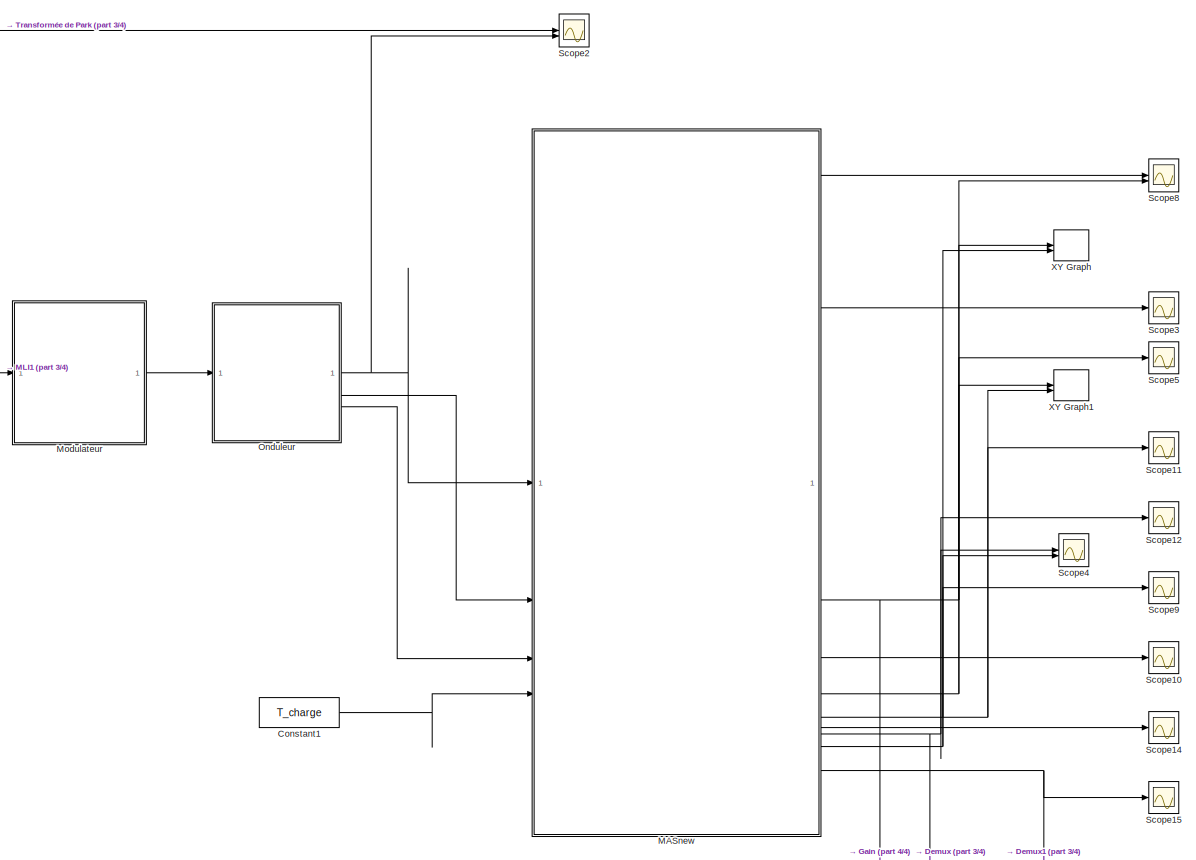
[diagram: root canvas - part 1/4, top right region]
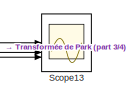
[diagram: root canvas - part 2/4, top center region]
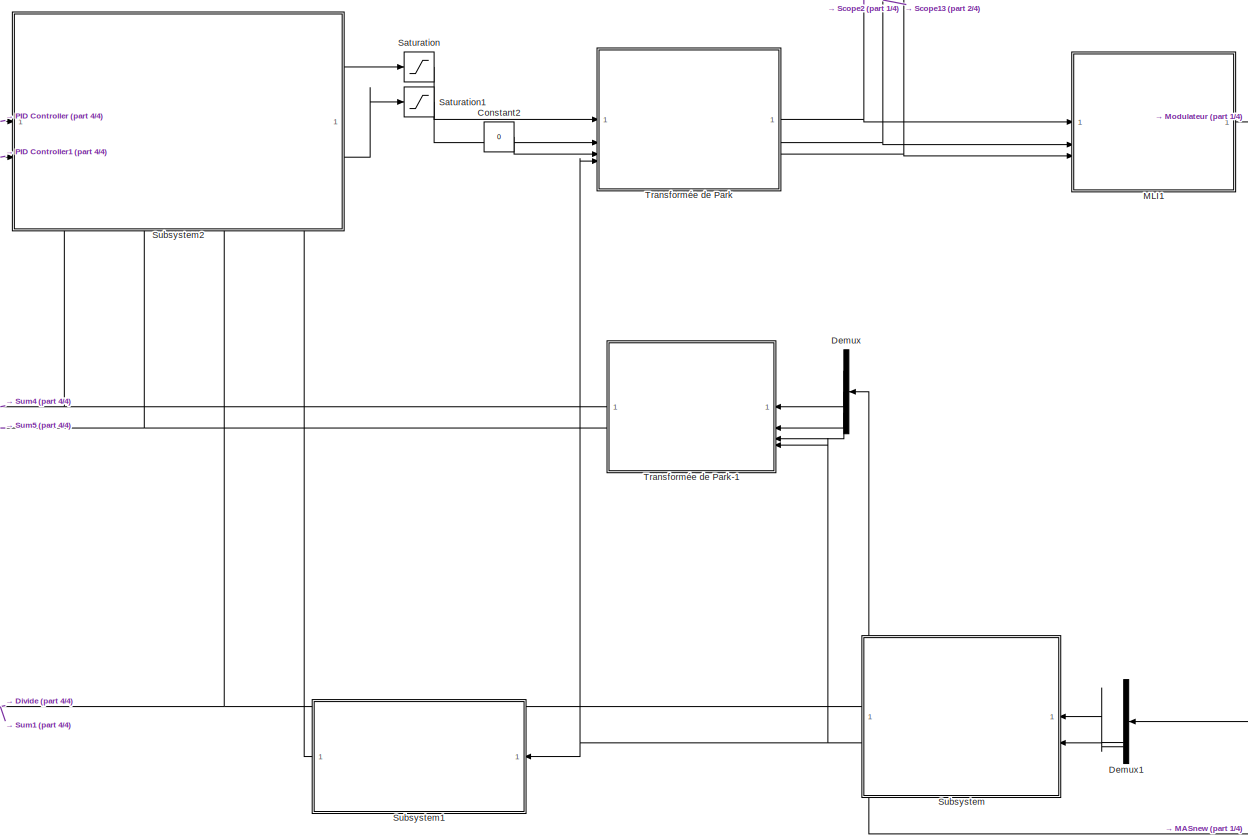
[diagram: root canvas - part 3/4, central region]
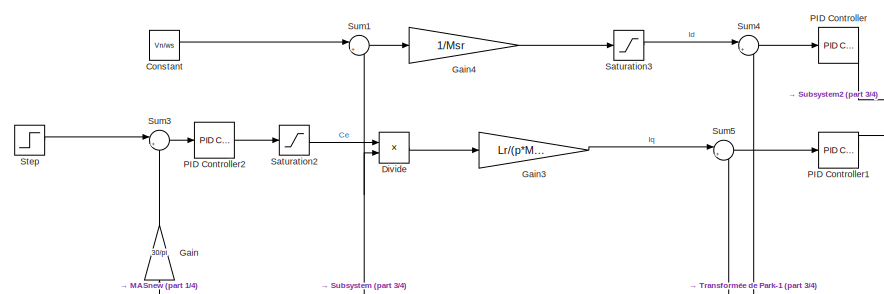
[diagram: root canvas - part 4/4, top left region]
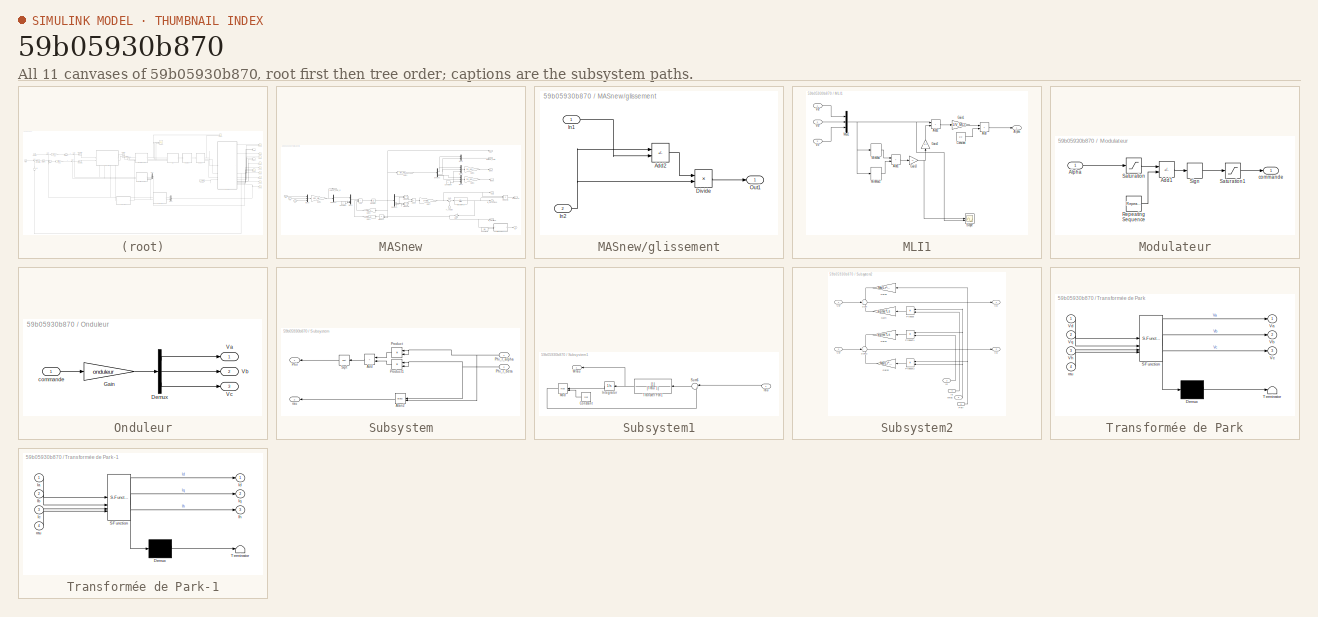
[diagram: thumbnail index - all 11 canvases of the model, root first then tree order]
MODEL slx_59b05930b870
KIND model
CONFIG AbsTol = auto
CONFIG EnableMultiTasking = off
CONFIG FixedStep = 1e-6
CONFIG MaxStep = auto
CONFIG MinStep = auto
CONFIG RelTol = 1e-3
CONFIG SampleTimeConstraint = Unconstrained
CONFIG SolverName = FixedStepAuto
CONFIG StartTime = 0.0
CONFIG StopTime = 0.3
BLOCK [Constant] Constant
  Value = Vn/ws
BLOCK [Constant] Constant1
  Value = T_charge
BLOCK [Constant] Constant2
  Value = 0
BLOCK [Demux] Demux
  NameLocation = top
  Outputs = 3
BLOCK [Demux] Demux1
  NameLocation = top
BLOCK [Product] Divide
  Inputs = */
BLOCK [Gain] Gain
  Gain = 30/pi
  NameLocation = right
BLOCK [Gain] Gain3
  Gain = Lr/(p*Msr)
BLOCK [Gain] Gain4
  Gain = 1/Msr
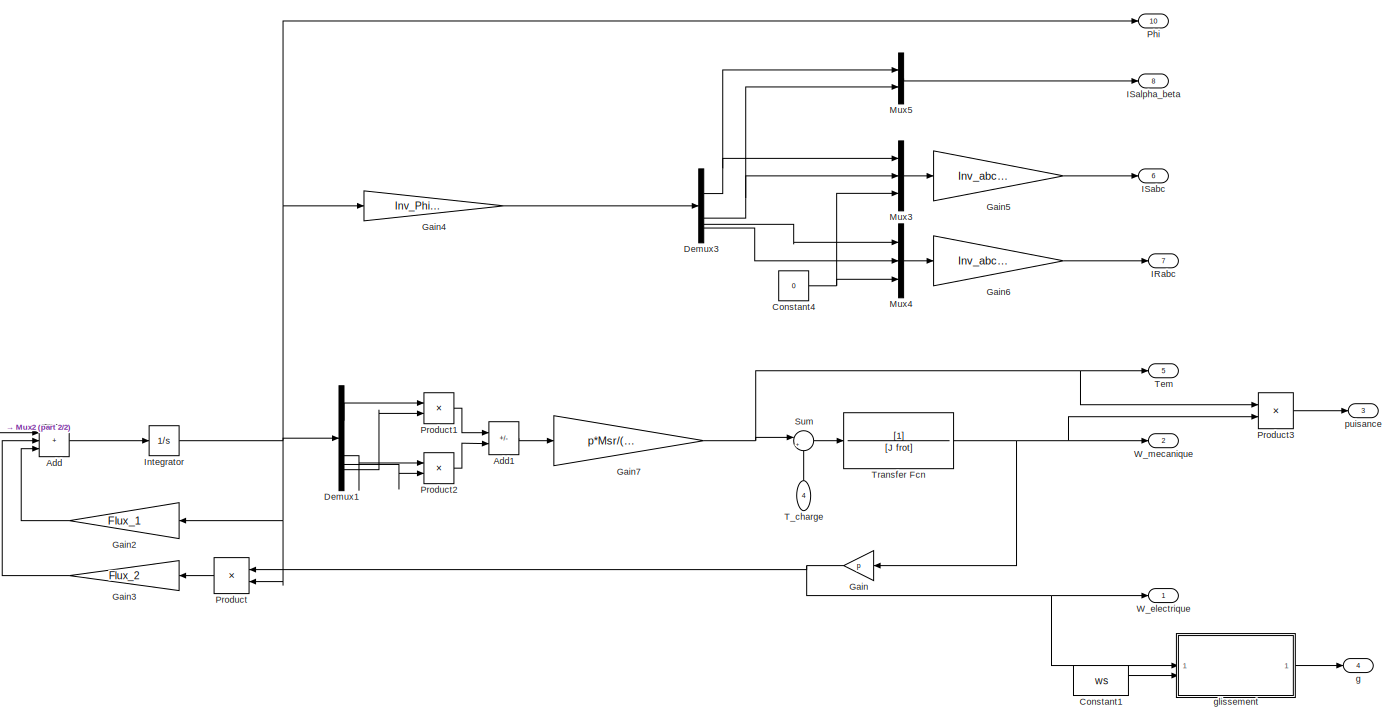
[diagram: MASnew - part 1/2, center side, full height]
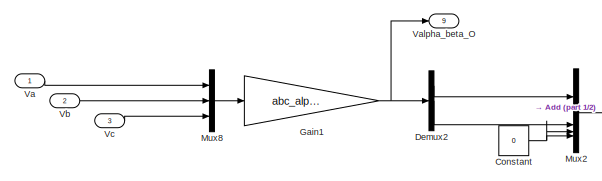
[diagram: MASnew - part 2/2, middle left region]
BLOCK [SubSystem] MASnew
BLOCK [Sum] MASnew/Add
  IconShape = rectangular
  Inputs = +++
BLOCK [Sum] MASnew/Add1
  IconShape = rectangular
  Inputs = +-
BLOCK [Constant] MASnew/Constant
  Value = 0
BLOCK [Constant] MASnew/Constant1
  Value = ws
BLOCK [Constant] MASnew/Constant4
  Value = 0
BLOCK [Demux] MASnew/Demux1
BLOCK [Demux] MASnew/Demux2
  Outputs = 3
BLOCK [Demux] MASnew/Demux3
BLOCK [Gain] MASnew/Gain
  Gain = p
  NameLocation = top
BLOCK [Gain] MASnew/Gain1
  Gain = abc_alpha_beta
  Multiplication = Matrix(K*u)
BLOCK [Gain] MASnew/Gain2
  Gain = Flux_1
  Multiplication = Matrix(K*u)
  NameLocation = top
BLOCK [Gain] MASnew/Gain3
  Gain = Flux_2
  Multiplication = Matrix(K*u)
  NameLocation = top
BLOCK [Gain] MASnew/Gain4
  Gain = Inv_Phi_Courant
  Multiplication = Matrix(K*u)
BLOCK [Gain] MASnew/Gain5
  Gain = Inv_abc_alpha_beta
  Multiplication = Matrix(K*u)
BLOCK [Gain] MASnew/Gain6
  Gain = Inv_abc_alpha_beta
  Multiplication = Matrix(K*u)
BLOCK [Gain] MASnew/Gain7
  Gain = p*Msr/(Msr^2 - Lr*Ls)
BLOCK [Outport] MASnew/IRabc
  Port = 7
BLOCK [Outport] MASnew/ISabc
  Port = 6
BLOCK [Outport] MASnew/ISalpha_beta
  Port = 8
BLOCK [Integrator] MASnew/Integrator
BLOCK [Mux] MASnew/Mux2
  DisplayOption = bar
BLOCK [Mux] MASnew/Mux3
  DisplayOption = bar
  Inputs = 3
BLOCK [Mux] MASnew/Mux4
  DisplayOption = bar
  Inputs = 3
BLOCK [Mux] MASnew/Mux5
  DisplayOption = bar
  Inputs = 2
BLOCK [Mux] MASnew/Mux8
  DisplayOption = bar
  Inputs = 3
BLOCK [Outport] MASnew/Phi
  Port = 10
BLOCK [Product] MASnew/Product
  NameLocation = top
BLOCK [Product] MASnew/Product1
BLOCK [Product] MASnew/Product2
BLOCK [Product] MASnew/Product3
BLOCK [Sum] MASnew/Sum
  Inputs = |+-
BLOCK [Inport] MASnew/T_charge
  NameLocation = right
  Port = 4
BLOCK [Outport] MASnew/Tem
  Port = 5
BLOCK [TransferFcn] MASnew/Transfer Fcn
  Denominator = [J frot]
BLOCK [Inport] MASnew/Va
BLOCK [Outport] MASnew/Valpha_beta_O
  Port = 9
BLOCK [Inport] MASnew/Vb
  Port = 2
BLOCK [Inport] MASnew/Vc
  Port = 3
BLOCK [Outport] MASnew/W_electrique
BLOCK [Outport] MASnew/W_mecanique
  Port = 2
BLOCK [Outport] MASnew/g
  Port = 4
BLOCK [SubSystem] MASnew/glissement
BLOCK [Sum] MASnew/glissement/Add2
  IconShape = rectangular
  Inputs = +-
BLOCK [Product] MASnew/glissement/Divide
  Inputs = */
BLOCK [Inport] MASnew/glissement/In1
BLOCK [Inport] MASnew/glissement/In2
  Port = 2
BLOCK [Outport] MASnew/glissement/Out1
BLOCK [Outport] MASnew/puisance
  Port = 3
BLOCK [SubSystem] MLI1
BLOCK [Sum] MLI1/Add
  IconShape = rectangular
BLOCK [Sum] MLI1/Add1
  IconShape = rectangular
BLOCK [Sum] MLI1/Add2
  IconShape = rectangular
BLOCK [Outport] MLI1/Alpha
BLOCK [Constant] MLI1/Constant
  Value = 1/2
BLOCK [Gain] MLI1/Gain1
  Gain = 1/V_MLI
BLOCK [Gain] MLI1/Gain2
  Gain = 1/2
  NameLocation = right
BLOCK [Gain] MLI1/Gain3
  Gain = -1
BLOCK [MinMax] MLI1/MinMax
BLOCK [MinMax] MLI1/MinMax1
  Function = max
BLOCK [Mux] MLI1/Mux1
  DisplayOption = bar
  Inputs = 3
BLOCK [Scope] MLI1/Scope
  Floating = off
  NumInputPorts = 2
  ScopeSpecificationString = Simulink.scopes.TimeScopeBlockCfg('CurrentConfiguration', extmgr.ConfigurationSet(extmgr.Configuration('Core','General UI',true),extmgr.Configuration('Core','Source UI',true),extmgr.Configuration('Sources','WiredSimulink',true,'DataLoggingVariableName','ScopeData4'),extmgr.Configuration('Visuals','Time Domain',true,'SerializedDisplays',{struct('MinYLimReal','-475.00000','MaxYLimReal','475.00000','...<+1568ch>
BLOCK [Inport] MLI1/Va*
BLOCK [Inport] MLI1/Vb*
  Port = 2
BLOCK [Inport] MLI1/Vc*
  Port = 3
BLOCK [SubSystem] Modulateur
BLOCK [Sum] Modulateur/Add1
  IconShape = rectangular
  Inputs = +-
BLOCK [Inport] Modulateur/Alpha
BLOCK [Reference] Modulateur/Repeating Sequence  REF=simulink/Sources/Repeating
Sequence
  SourceBlock = simulink/Sources/Repeating\nSequence
  SourceType = Repeating table
BLOCK [Saturate] Modulateur/Saturation
  LowerLimit = 0
  UpperLimit = 1
BLOCK [Saturate] Modulateur/Saturation1
  LowerLimit = 0
  UpperLimit = 1
BLOCK [Signum] Modulateur/Sign
BLOCK [Outport] Modulateur/commande
BLOCK [SubSystem] Onduleur
BLOCK [Demux] Onduleur/Demux
  Outputs = 3
BLOCK [Gain] Onduleur/Gain
  Gain = onduleur
  Multiplication = Matrix(K*u)
BLOCK [Outport] Onduleur/Va
BLOCK [Outport] Onduleur/Vb
  Port = 2
BLOCK [Outport] Onduleur/Vc
  Port = 3
BLOCK [Inport] Onduleur/commande
BLOCK [Reference] PID Controller  REF=slpidlib/PID Controller
  LibrarySourceBlock = simulink/Continuous/PID Controller
  SourceBlock = slpidlib/PID Controller
  SourceType = PID 1dof
BLOCK [Reference] PID Controller1  REF=slpidlib/PID Controller
  LibrarySourceBlock = simulink/Continuous/PID Controller
  SourceBlock = slpidlib/PID Controller
  SourceType = PID 1dof
BLOCK [Reference] PID Controller2  REF=slpidlib/PID Controller
  LibrarySourceBlock = simulink/Continuous/PID Controller
  SourceBlock = slpidlib/PID Controller
  SourceType = PID 1dof
BLOCK [Saturate] Saturation
BLOCK [Saturate] Saturation1
BLOCK [Saturate] Saturation2
BLOCK [Saturate] Saturation3
BLOCK [Scope] Scope10
  Floating = off
  NumInputPorts = 1
  ScopeSpecificationString = Simulink.scopes.TimeScopeBlockCfg('CurrentConfiguration', extmgr.ConfigurationSet(extmgr.Configuration('Core','General UI',true),extmgr.Configuration('Core','Source UI',true),extmgr.Configuration('Sources','WiredSimulink',true,'DataLoggingVariableName','ScopeData6'),extmgr.Configuration('Visuals','Time Domain',true,'SerializedDisplays',{struct('MinYLimReal','-1.00000','MaxYLimReal','1.00000','YLab...<+1411ch>
BLOCK [Scope] Scope11
  Floating = off
  NumInputPorts = 1
  ScopeSpecificationString = Simulink.scopes.TimeScopeBlockCfg('CurrentConfiguration', extmgr.ConfigurationSet(extmgr.Configuration('Core','General UI',true),extmgr.Configuration('Core','Source UI',true),extmgr.Configuration('Sources','WiredSimulink',true,'DataLoggingVariableName','ScopeData7'),extmgr.Configuration('Visuals','Time Domain',true,'SerializedDisplays',{struct('MinYLimReal','-76.19937','MaxYLimReal','201.26581','Y...<+1448ch>
BLOCK [Scope] Scope12
  Floating = off
  NumInputPorts = 1
  ScopeSpecificationString = Simulink.scopes.TimeScopeBlockCfg('CurrentConfiguration', extmgr.ConfigurationSet(extmgr.Configuration('Core','General UI',true),extmgr.Configuration('Core','Source UI',true),extmgr.Configuration('Sources','WiredSimulink',true,'DataLoggingVariableName','ScopeData8'),extmgr.Configuration('Visuals','Time Domain',true,'SerializedDisplays',{struct('MinYLimReal','-8.32996','MaxYLimReal','8.32356','YLab...<+1443ch>
BLOCK [Scope] Scope13
  Floating = off
  NumInputPorts = 3
  ScopeSpecificationString = Simulink.scopes.TimeScopeBlockCfg('CurrentConfiguration', extmgr.ConfigurationSet(extmgr.Configuration('Core','General UI',true),extmgr.Configuration('Core','Source UI',true),extmgr.Configuration('Sources','WiredSimulink',true,'DataLoggingVariableName','ScopeData9'),extmgr.Configuration('Visuals','Time Domain',true,'SerializedDisplays',{struct('MinYLimReal','-475.00000','MaxYLimReal','475.00000','...<+1518ch>
BLOCK [Scope] Scope14
  Floating = off
  NumInputPorts = 1
  ScopeSpecificationString = Simulink.scopes.TimeScopeBlockCfg('CurrentConfiguration', extmgr.ConfigurationSet(extmgr.Configuration('Core','General UI',true),extmgr.Configuration('Core','Source UI',true),extmgr.Configuration('Sources','WiredSimulink',true,'DataLoggingVariableName','ScopeData10'),extmgr.Configuration('Visuals','Time Domain',true,'SerializedDisplays',{struct('MinYLimReal','-581.75381','MaxYLimReal','581.75381',...<+1458ch>
BLOCK [Scope] Scope15
  Floating = off
  NumInputPorts = 1
  ScopeSpecificationString = Simulink.scopes.TimeScopeBlockCfg('CurrentConfiguration', extmgr.ConfigurationSet(extmgr.Configuration('Core','General UI',true),extmgr.Configuration('Core','Source UI',true),extmgr.Configuration('Sources','WiredSimulink',true,'DataLoggingVariableName','ScopeData11'),extmgr.Configuration('Visuals','Time Domain',true,'SerializedDisplays',{struct('MinYLimReal','-1.91408','MaxYLimReal','2.36609','YLa...<+1482ch>
BLOCK [Scope] Scope2
  Floating = off
  NumInputPorts = 2
  ScopeSpecificationString = Simulink.scopes.TimeScopeBlockCfg('CurrentConfiguration', extmgr.ConfigurationSet(extmgr.Configuration('Core','General UI',true),extmgr.Configuration('Core','Source UI',true),extmgr.Configuration('Sources','WiredSimulink',true,'DataLoggingVariableName','ScopeData12'),extmgr.Configuration('Visuals','Time Domain',true,'SerializedDisplays',{struct('MinYLimReal','-900.00000','MaxYLimReal','900.00000',...<+1456ch>
BLOCK [Scope] Scope3
  Floating = off
  NumInputPorts = 1
  ScopeSpecificationString = Simulink.scopes.TimeScopeBlockCfg('CurrentConfiguration', extmgr.ConfigurationSet(extmgr.Configuration('Core','General UI',true),extmgr.Configuration('Core','Source UI',true),extmgr.Configuration('Sources','WiredSimulink',true,'DataLoggingVariableName','ScopeData1'),extmgr.Configuration('Visuals','Time Domain',true,'SerializedDisplays',{struct('MinYLimReal','-10287.5425','MaxYLimReal','15066.7833'...<+1462ch>
BLOCK [Scope] Scope4
  Floating = off
  NumInputPorts = 2
  ScopeSpecificationString = Simulink.scopes.TimeScopeBlockCfg('CurrentConfiguration', extmgr.ConfigurationSet(extmgr.Configuration('Core','General UI',true),extmgr.Configuration('Core','Source UI',true),extmgr.Configuration('Sources','WiredSimulink',true,'DataLoggingVariableName','ScopeData2'),extmgr.Configuration('Visuals','Time Domain',true,'SerializedDisplays',{struct('MinYLimReal','-113.36239','MaxYLimReal','121.11691','...<+1521ch>
BLOCK [Scope] Scope5
  Floating = off
  NumInputPorts = 1
  ScopeSpecificationString = Simulink.scopes.TimeScopeBlockCfg('CurrentConfiguration', extmgr.ConfigurationSet(extmgr.Configuration('Core','General UI',true),extmgr.Configuration('Core','Source UI',true),extmgr.Configuration('Sources','WiredSimulink',true,'DataLoggingVariableName','ScopeData3'),extmgr.Configuration('Visuals','Time Domain',true,'SerializedDisplays',{struct('MinYLimReal','-0.22694','MaxYLimReal','1.13633','YLab...<+1438ch>
BLOCK [Scope] Scope8
  Floating = off
  NumInputPorts = 2
  ScopeSpecificationString = Simulink.scopes.TimeScopeBlockCfg('CurrentConfiguration', extmgr.ConfigurationSet(extmgr.Configuration('Core','General UI',true),extmgr.Configuration('Core','Source UI',true),extmgr.Configuration('Sources','WiredSimulink',true,'DataLoggingVariableName','ScopeData13'),extmgr.Configuration('Visuals','Time Domain',true,'SerializedDisplays',{struct('MinYLimReal','307.37761','MaxYLimReal','316.92221','...<+1464ch>
BLOCK [Scope] Scope9
  Floating = off
  NumInputPorts = 1
  ScopeSpecificationString = Simulink.scopes.TimeScopeBlockCfg('CurrentConfiguration', extmgr.ConfigurationSet(extmgr.Configuration('Core','General UI',true),extmgr.Configuration('Core','Source UI',true),extmgr.Configuration('Sources','WiredSimulink',true),extmgr.Configuration('Visuals','Time Domain',true,'SerializedDisplays',{struct('MinYLimReal','-0.97795','MaxYLimReal','1.04187','YLabelReal','','MinYLimMag','0.00000','MaxY...<+1404ch>
BLOCK [Step] Step
  SampleTime = 0
  Time = 0.1
BLOCK [SubSystem] Subsystem
  NameLocation = top
BLOCK [Sum] Subsystem/Add
  IconShape = rectangular
  NameLocation = top
BLOCK [Trigonometry] Subsystem/Atan2
  NameLocation = top
  Operator = atan2
BLOCK [Inport] Subsystem/Phi_r_alpha
BLOCK [Inport] Subsystem/Phi_r_beta
  Port = 2
BLOCK [Outport] Subsystem/Phir
  NameLocation = top
BLOCK [Product] Subsystem/Product
  NameLocation = top
BLOCK [Product] Subsystem/Product1
  NameLocation = top
BLOCK [Sqrt] Subsystem/Sqrt
  NameLocation = top
BLOCK [Outport] Subsystem/rau
  NameLocation = top
  Port = 2
BLOCK [SubSystem] Subsystem1
  NameLocation = top
BLOCK [Constant] Subsystem1/Constant
  NameLocation = top
  Value = 2*pi
BLOCK [Integrator] Subsystem1/Integrator
  NameLocation = top
BLOCK [Math] Subsystem1/Mod
  NameLocation = top
  Operator = mod
BLOCK [Sum] Subsystem1/Sum6
  Inputs = |+-
  NameLocation = top
BLOCK [TransferFcn] Subsystem1/Transfer Fcn1
  Denominator = [Trau 1]
  NameLocation = top
BLOCK [Outport] Subsystem1/Wrau
  NameLocation = top
BLOCK [Inport] Subsystem1/rau
BLOCK [SubSystem] Subsystem2
  PortSchema = {"entries":[{"content":{"sides":[{"content":{"connectorIds":["In1","In2"]},"type":"ConnectorPlacement.EquallySpacedRectSide","uuid":"374a3029-9c19-44eb-9b98-de55e62c7022"},{"content":{"connectorIds":["Out1","Out2"],"side":"RIGHT"},"type":"ConnectorPlacement.EquallySpacedRectSide","uuid":"b066ba17-ce68-41f6-a300-7d3bc4dc3f92"},{"content":{"side":"TOP"},"type":"ConnectorPlacement.EquallySpacedRectSi...<+402ch>
BLOCK [Gain] Subsystem2/Gain
  Gain = sigma*Ls
  NameLocation = top
BLOCK [Gain] Subsystem2/Gain1
  Gain = sigma*Ls
  NameLocation = top
BLOCK [Gain] Subsystem2/Gain2
  Gain = Msr/Lr*ws
  NameLocation = top
BLOCK [Gain] Subsystem2/Gain5
  Gain = Msr/Lr^2*Rr
  NameLocation = top
BLOCK [Inport] Subsystem2/Id
  Port = 3
BLOCK [Inport] Subsystem2/Iq
  Port = 4
BLOCK [Inport] Subsystem2/Phir
  Port = 5
BLOCK [Product] Subsystem2/Product
  NameLocation = top
BLOCK [Product] Subsystem2/Product1
  NameLocation = top
BLOCK [Product] Subsystem2/Product2
  NameLocation = top
BLOCK [Sum] Subsystem2/Sum
  Inputs = +++
BLOCK [Sum] Subsystem2/Sum2
  Inputs = -+-
BLOCK [Outport] Subsystem2/Vd
BLOCK [Inport] Subsystem2/Vd*
BLOCK [Outport] Subsystem2/Vq
  Port = 2
BLOCK [Inport] Subsystem2/Vq*
  Port = 2
BLOCK [Inport] Subsystem2/Wrau
  NameLocation = top
  Port = 6
BLOCK [Sum] Sum1
  Inputs = |+-
BLOCK [Sum] Sum3
  Inputs = |+-
BLOCK [Sum] Sum4
  Inputs = |+-
BLOCK [Sum] Sum5
  Inputs = |+-
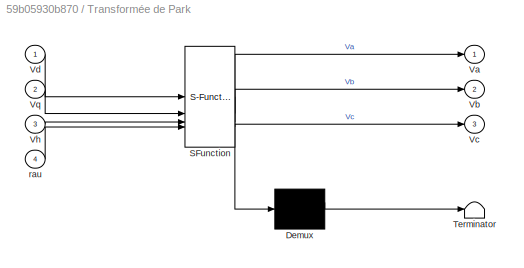
BLOCK [SubSystem] Transformée de Park
  ErrorFcn = Stateflow.Translate.translate
  LibrarySourceBlock = simulink/User-Defined\nFunctions/MATLAB Function
  PermitHierarchicalResolution = ExplicitOnly
  SFBlockType = MATLAB Function
  TreatAsAtomicUnit = on
BLOCK [SubSystem] Transformée de Park-1
  ErrorFcn = Stateflow.Translate.translate
  LibrarySourceBlock = simulink/User-Defined\nFunctions/MATLAB Function
  NameLocation = top
  PermitHierarchicalResolution = ExplicitOnly
  SFBlockType = MATLAB Function
  TreatAsAtomicUnit = on
BLOCK [Demux] Transformée de Park-1/ Demux 
  Outputs = 1
BLOCK [S-Function] Transformée de Park-1/ SFunction 
  EnableBusSupport = on
  FunctionName = sf_sfun
  PortCounts = [4 4]
  SFcnIsStateOwnerBlock = off
  SFunctionDeploymentMode = off
  Tag = Stateflow S-Function 8
BLOCK [Terminator] Transformée de Park-1/ Terminator 
BLOCK [Inport] Transformée de Park-1/Ia
BLOCK [Inport] Transformée de Park-1/Ib
  Port = 2
BLOCK [Inport] Transformée de Park-1/Ic
  Port = 3
BLOCK [Outport] Transformée de Park-1/Id
BLOCK [Outport] Transformée de Park-1/Ih
  Port = 3
BLOCK [Outport] Transformée de Park-1/Iq
  Port = 2
BLOCK [Inport] Transformée de Park-1/rau
  Port = 4
BLOCK [Demux] Transformée de Park/ Demux 
  Outputs = 1
BLOCK [S-Function] Transformée de Park/ SFunction 
  EnableBusSupport = on
  FunctionName = sf_sfun
  PortCounts = [4 4]
  SFcnIsStateOwnerBlock = off
  SFunctionDeploymentMode = off
  Tag = Stateflow S-Function 7
BLOCK [Terminator] Transformée de Park/ Terminator 
BLOCK [Outport] Transformée de Park/Va
BLOCK [Outport] Transformée de Park/Vb
  Port = 2
BLOCK [Outport] Transformée de Park/Vc
  Port = 3
BLOCK [Inport] Transformée de Park/Vd
BLOCK [Inport] Transformée de Park/Vh
  Port = 3
BLOCK [Inport] Transformée de Park/Vq
  Port = 2
BLOCK [Inport] Transformée de Park/rau
  Port = 4
BLOCK [Record] XY Graph
  CompatibilityTag = XY
  FileSettingsInternal = {"entries":[{"content":{"excelSettings":{"content":{},"type":"Streamout.ExcelSettings"}},"type":"Streamout.FileSettingStorage","uuid":"f28bcfdc-29c8-41b2-9037-532fc5c7e8b2"}],"packageUris":["http://schema.mathworks.com/mf0/streamout_blocks/R2020a"],"version":"1.0"}
  Layout = [1 1]
  SignalsInternal = {"entries":[{"content":{"signals":[{"content":{"blockPath":["MAS/XY Graph"],"dimensions":[1],"domain":"MAS/XY Graph","lineColor":"#a2142f","plots":[1],"port":1,"sid":[""],"signalID":4156,"signalName":"MASnew:2"},"type":"RecordBlkView.Signal","uuid":"834b7e5b-c07c-4418-9d5a-896b98f5fa33"},{"content":{"blockPath":["MAS/XY Graph"],"dimensions":[1],"domain":"MAS/XY Graph","lineColor":"#139fff","plots"...<+319ch>
  VisualizationBindings = {"xyplotplugin":{"info":[{"series":[{"bindingParametersList":[{"parameter":"X-Axis","signalID":4156,"signalName":"MASnew:2"},{"parameter":"Y-Axis","signalID":4160,"signalName":"MASnew:5"}],"seriesID":49409}],"subplotID":1}]}}
BLOCK [Record] XY Graph1
  CompatibilityTag = XY
  FileSettingsInternal = {"entries":[{"content":{"excelSettings":{"content":{},"type":"Streamout.ExcelSettings"}},"type":"Streamout.FileSettingStorage","uuid":"aadc846a-b6cb-4434-9563-fc8bc5a6f5f1"}],"packageUris":["http://schema.mathworks.com/mf0/streamout_blocks/R2020a"],"version":"1.0"}
  Layout = [1 1]
  SignalsInternal = {"entries":[{"content":{"signals":[{"content":{"blockPath":["MAS/XY Graph1"],"dimensions":[1],"domain":"MAS/XY Graph1","lineColor":"#a2142f","plots":[1],"port":1,"sid":[""],"signalID":4164,"signalName":"MASnew:4"},"type":"RecordBlkView.Signal","uuid":"23fc42c7-f1db-4600-8dec-494fe7667da3"},{"content":{"blockPath":["MAS/XY Graph1"],"dimensions":[1],"domain":"MAS/XY Graph1","lineColor":"#139fff","pl...<+323ch>
  VisualizationBindings = {"xyplotplugin":{"info":[{"series":[{"bindingParametersList":[{"parameter":"X-Axis","signalID":4164,"signalName":"MASnew:4"},{"parameter":"Y-Axis","signalID":4168,"signalName":"MASnew:5"}],"seriesID":17936}],"subplotID":1}]}}
LINE Constant1:1 -> MASnew:4
LINE Constant2:1 -> Transformée de Park:3
LINE Constant:1 -> Sum1:1
LINE Demux1:3 -> Subsystem:1
LINE Demux1:4 -> Subsystem:2
LINE Demux:1 -> Transformée de Park-1:1
LINE Demux:2 -> Transformée de Park-1:2
LINE Demux:3 -> Transformée de Park-1:3
LINE Divide:1 -> Gain3:1
LINE Gain3:1 -> Sum5:1
LINE Gain4:1 -> Saturation3:1
LINE Gain:1 -> Sum3:2
LINE MASnew/Add1:1 -> MASnew/Gain7:1
LINE MASnew/Add:1 -> MASnew/Integrator:1
LINE MASnew/Constant1:1 -> MASnew/glissement:2
NET MASnew/Constant4:1 -> MASnew/Mux3:3, MASnew/Mux4:3
NET MASnew/Constant:1 -> MASnew/Mux2:3, MASnew/Mux2:4
LINE MASnew/Demux1:1 -> MASnew/Product1:1
LINE MASnew/Demux1:2 -> MASnew/Product2:1
LINE MASnew/Demux1:3 -> MASnew/Product2:2
LINE MASnew/Demux1:4 -> MASnew/Product1:2
LINE MASnew/Demux2:1 -> MASnew/Mux2:1
LINE MASnew/Demux2:2 -> MASnew/Mux2:2
NET MASnew/Demux3:1 -> MASnew/Mux3:1, MASnew/Mux5:1
NET MASnew/Demux3:2 -> MASnew/Mux3:2, MASnew/Mux5:2
LINE MASnew/Demux3:3 -> MASnew/Mux4:1
LINE MASnew/Demux3:4 -> MASnew/Mux4:2
NET MASnew/Gain1:1 -> MASnew/Demux2:1, MASnew/Valpha_beta_O:1
LINE MASnew/Gain2:1 -> MASnew/Add:3
LINE MASnew/Gain3:1 -> MASnew/Add:2
LINE MASnew/Gain4:1 -> MASnew/Demux3:1
LINE MASnew/Gain5:1 -> MASnew/ISabc:1
LINE MASnew/Gain6:1 -> MASnew/IRabc:1
NET MASnew/Gain7:1 -> MASnew/Product3:1, MASnew/Sum:1, MASnew/Tem:1
NET MASnew/Gain:1 -> MASnew/Product:1, MASnew/W_electrique:1, MASnew/glissement:1
NET MASnew/Integrator:1 -> MASnew/Demux1:1, MASnew/Gain2:1, MASnew/Gain4:1, MASnew/Phi:1, MASnew/Product:2
LINE MASnew/Mux2:1 -> MASnew/Add:1
LINE MASnew/Mux3:1 -> MASnew/Gain5:1
LINE MASnew/Mux4:1 -> MASnew/Gain6:1
LINE MASnew/Mux5:1 -> MASnew/ISalpha_beta:1
LINE MASnew/Mux8:1 -> MASnew/Gain1:1
LINE MASnew/Product1:1 -> MASnew/Add1:1
LINE MASnew/Product2:1 -> MASnew/Add1:2
LINE MASnew/Product3:1 -> MASnew/puisance:1
LINE MASnew/Product:1 -> MASnew/Gain3:1
LINE MASnew/Sum:1 -> MASnew/Transfer Fcn:1
LINE MASnew/T_charge:1 -> MASnew/Sum:2
NET MASnew/Transfer Fcn:1 -> MASnew/Gain:1, MASnew/Product3:2, MASnew/W_mecanique:1
LINE MASnew/Va:1 -> MASnew/Mux8:1
LINE MASnew/Vb:1 -> MASnew/Mux8:2
LINE MASnew/Vc:1 -> MASnew/Mux8:3
LINE MASnew/glissement/Add2:1 -> MASnew/glissement/Divide:1
LINE MASnew/glissement/Divide:1 -> MASnew/glissement/Out1:1
LINE MASnew/glissement/In1:1 -> MASnew/glissement/Add2:2
NET MASnew/glissement/In2:1 -> MASnew/glissement/Add2:1, MASnew/glissement/Divide:2
LINE MASnew/glissement:1 -> MASnew/g:1
LINE MASnew:1 -> Scope8:1
NET MASnew:10 -> Demux1:1, Scope15:1
NET MASnew:2 -> Gain:1, Scope8:2, XY Graph:1
LINE MASnew:3 -> Scope3:1
NET MASnew:4 -> Scope5:1, XY Graph1:1
NET MASnew:5 -> Scope11:1, XY Graph1:2, XY Graph:2
NET MASnew:6 -> Demux:1, Scope12:1, Scope4:1
NET MASnew:7 -> Scope4:2, Scope9:1
LINE MASnew:8 -> Scope10:1
LINE MASnew:9 -> Scope14:1
LINE MLI1/Add1:1 -> MLI1/Gain3:1
LINE MLI1/Add2:1 -> MLI1/Gain1:1
LINE MLI1/Add:1 -> MLI1/Alpha:1
LINE MLI1/Constant:1 -> MLI1/Add:2
LINE MLI1/Gain1:1 -> MLI1/Add:1
LINE MLI1/Gain2:1 -> MLI1/Add2:2
NET MLI1/Gain3:1 -> MLI1/Gain2:1, MLI1/Scope:1
LINE MLI1/MinMax1:1 -> MLI1/Add1:2
LINE MLI1/MinMax:1 -> MLI1/Add1:1
NET MLI1/Mux1:1 -> MLI1/Add2:1, MLI1/MinMax1:1, MLI1/MinMax:1, MLI1/Scope:2
LINE MLI1/Va*:1 -> MLI1/Mux1:1
LINE MLI1/Vb*:1 -> MLI1/Mux1:2
LINE MLI1/Vc*:1 -> MLI1/Mux1:3
LINE MLI1:1 -> Modulateur:1
LINE Modulateur/Add1:1 -> Modulateur/Sign:1
LINE Modulateur/Alpha:1 -> Modulateur/Saturation:1
LINE Modulateur/Repeating Sequence:1 -> Modulateur/Add1:2
LINE Modulateur/Saturation1:1 -> Modulateur/commande:1
LINE Modulateur/Saturation:1 -> Modulateur/Add1:1
LINE Modulateur/Sign:1 -> Modulateur/Saturation1:1
LINE Modulateur:1 -> Onduleur:1
LINE Onduleur/Demux:1 -> Onduleur/Va:1
LINE Onduleur/Demux:2 -> Onduleur/Vb:1
LINE Onduleur/Demux:3 -> Onduleur/Vc:1
LINE Onduleur/Gain:1 -> Onduleur/Demux:1
LINE Onduleur/commande:1 -> Onduleur/Gain:1
NET Onduleur:1 -> MASnew:1, Scope2:2
LINE Onduleur:2 -> MASnew:2
LINE Onduleur:3 -> MASnew:3
LINE PID Controller1:1 -> Subsystem2:2
LINE PID Controller2:1 -> Saturation2:1
LINE PID Controller:1 -> Subsystem2:1
LINE Saturation1:1 -> Transformée de Park:2
LINE Saturation2:1 -> Divide:1
LINE Saturation3:1 -> Sum4:1
LINE Saturation:1 -> Transformée de Park:1
LINE Step:1 -> Sum3:1
LINE Subsystem/Add:1 -> Subsystem/Sqrt:1
LINE Subsystem/Atan2:1 -> Subsystem/rau:1
NET Subsystem/Phi_r_alpha:1 -> Subsystem/Atan2:2, Subsystem/Product:1, Subsystem/Product:2
NET Subsystem/Phi_r_beta:1 -> Subsystem/Atan2:1, Subsystem/Product1:1, Subsystem/Product1:2
LINE Subsystem/Product1:1 -> Subsystem/Add:2
LINE Subsystem/Product:1 -> Subsystem/Add:1
LINE Subsystem/Sqrt:1 -> Subsystem/Phir:1
LINE Subsystem1/Constant:1 -> Subsystem1/Mod:2
LINE Subsystem1/Integrator:1 -> Subsystem1/Mod:1
LINE Subsystem1/Mod:1 -> Subsystem1/Sum6:2
LINE Subsystem1/Sum6:1 -> Subsystem1/Transfer Fcn1:1
NET Subsystem1/Transfer Fcn1:1 -> Subsystem1/Integrator:1, Subsystem1/Wrau:1
LINE Subsystem1/rau:1 -> Subsystem1/Sum6:1
LINE Subsystem1:1 -> Subsystem2:6
LINE Subsystem2/Gain1:1 -> Subsystem2/Sum2:1
LINE Subsystem2/Gain2:1 -> Subsystem2/Sum2:3
LINE Subsystem2/Gain5:1 -> Subsystem2/Sum:1
LINE Subsystem2/Gain:1 -> Subsystem2/Sum:3
LINE Subsystem2/Id:1 -> Subsystem2/Product1:2
LINE Subsystem2/Iq:1 -> Subsystem2/Product:2
NET Subsystem2/Phir:1 -> Subsystem2/Gain5:1, Subsystem2/Product2:1
LINE Subsystem2/Product1:1 -> Subsystem2/Gain1:1
LINE Subsystem2/Product2:1 -> Subsystem2/Gain2:1
LINE Subsystem2/Product:1 -> Subsystem2/Gain:1
LINE Subsystem2/Sum2:1 -> Subsystem2/Vq:1
LINE Subsystem2/Sum:1 -> Subsystem2/Vd:1
LINE Subsystem2/Vd*:1 -> Subsystem2/Sum:2
LINE Subsystem2/Vq*:1 -> Subsystem2/Sum2:2
NET Subsystem2/Wrau:1 -> Subsystem2/Product1:1, Subsystem2/Product2:2, Subsystem2/Product:1
LINE Subsystem2:1 -> Saturation:1
LINE Subsystem2:2 -> Saturation1:1
NET Subsystem:1 -> Divide:2, Subsystem2:5, Sum1:2
NET Subsystem:2 -> Subsystem1:1, Transformée de Park-1:4, Transformée de Park:4
LINE Sum1:1 -> Gain4:1
LINE Sum3:1 -> PID Controller2:1
LINE Sum4:1 -> PID Controller:1
LINE Sum5:1 -> PID Controller1:1
NET Transformée de Park-1:1 -> Subsystem2:3, Sum4:2
NET Transformée de Park-1:2 -> Subsystem2:4, Sum5:2
NET Transformée de Park:1 -> MLI1:1, Scope13:1, Scope2:1
NET Transformée de Park:2 -> MLI1:2, Scope13:2
NET Transformée de Park:3 -> MLI1:3, Scope13:3
note: NET lines group one-source signal fan-out (src -> all destinations, sorted); 1:1 wires keep LINE
CHART Transformée de Park states=1 transitions=1
  STATE_LABEL 'eML_blk_kernel()'
  STATE_LABEL "SCRIPT:\nfunction [Va, Vb, Vc] = dq_abc(Vd,Vq,Vh,rau)\n\n\n    % Vecteur de tensions d'entrée\n    V = [Vd;Vq;Vh];\n    \n    % Matrice de transformation\n    transformation_matrix = sqrt(2/3) * [cos(rau), cos(rau - 2*pi/3), cos(rau + 2*pi/3);\n                                         -sin(rau), -sin(rau - 2*pi/3), -sin(rau + 2*pi/3);\n                                          1/sqrt(2), 1/sqrt(2), 1/sqrt(2...<+193ch>"
CHART Transformée de Park-1 states=1 transitions=1
  STATE_LABEL 'eML_blk_kernel()'
  STATE_LABEL "SCRIPT:\nfunction [Id,Iq,Ih] = dq_abc(Ia, Ib, Ic,rau)\n\n\n    % Vecteur de tensions d'entrée\n    I = [Ia; Ib; Ic];\n    \n    % Matrice de transformation\n    transformation_matrix = sqrt(2/3) * [cos(rau), cos(rau - 2*pi/3), cos(rau + 2*pi/3);\n                                         -sin(rau), -sin(rau - 2*pi/3), -sin(rau + 2*pi/3);\n                                          1/sqrt(2), 1/sqrt(2), 1/sqrt...<+200ch>"
CHART  states=0 transitions=0
CHART  states=0 transitions=0
